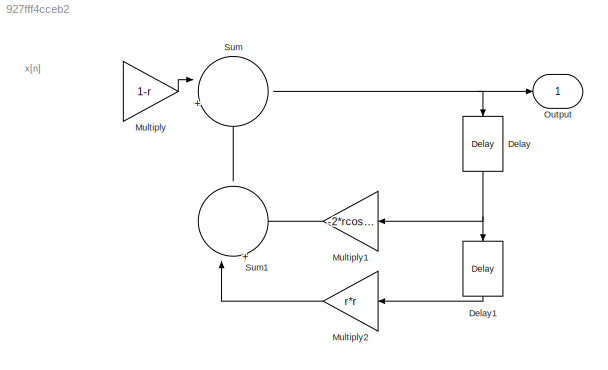
MODEL slx_927fff4cceb2
KIND model
CONFIG AbsTol = auto
CONFIG EnableMultiTasking = off
CONFIG FixedStep = auto
CONFIG MaxStep = auto
CONFIG MinStep = auto
CONFIG RelTol = 1e-3
CONFIG SampleTimeConstraint = Unconstrained
CONFIG SolverName = VariableStepAuto
CONFIG StartTime = 0.0
CONFIG StopTime = 10.0
BLOCK [Delay] Delay
  DelayLength = 1
  InputPortMap = u0
  InputProcessing = Columns as channels (frame based)
  NameLocation = left
  Ports = [1, 1]
BLOCK [Delay] Delay1
  DelayLength = 1
  InputPortMap = u0
  InputProcessing = Columns as channels (frame based)
  NameLocation = left
  Ports = [1, 1]
BLOCK [Gain] Multiply
  Gain = 1-r
BLOCK [Gain] Multiply1
  Gain = -2*rcos(a)
BLOCK [Gain] Multiply2
  Gain = r*r
BLOCK [Outport] Output
BLOCK [Sum] Sum
  Inputs = |++
  Ports = [2, 1]
BLOCK [Sum] Sum1
  Inputs = |++
  NameLocation = right
  Ports = [2, 1]
ANNOTATION (root): x[n]
LINE Delay1:1 -> Multiply2:1
NET Delay:1 -> Delay1:1, Multiply1:1
LINE Multiply1:1 -> Sum1:2
LINE Multiply2:1 -> Sum1:1
LINE Multiply:1 -> Sum:1
LINE Sum1:1 -> Sum:2
NET Sum:1 -> Delay:1, Output:1
note: NET lines group one-source signal fan-out (src -> all destinations, sorted); 1:1 wires keep LINE
